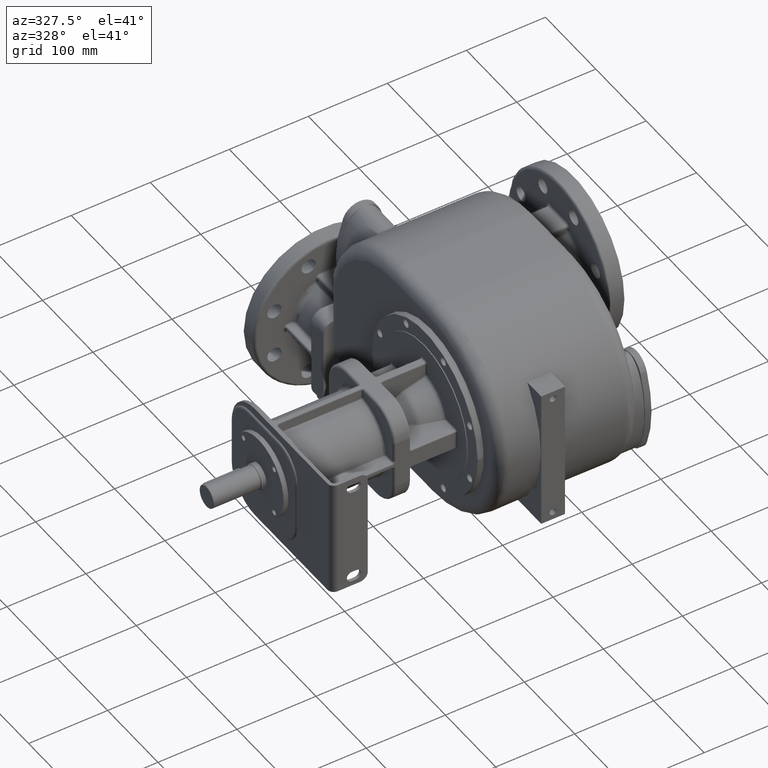
[diagram: clean part render]
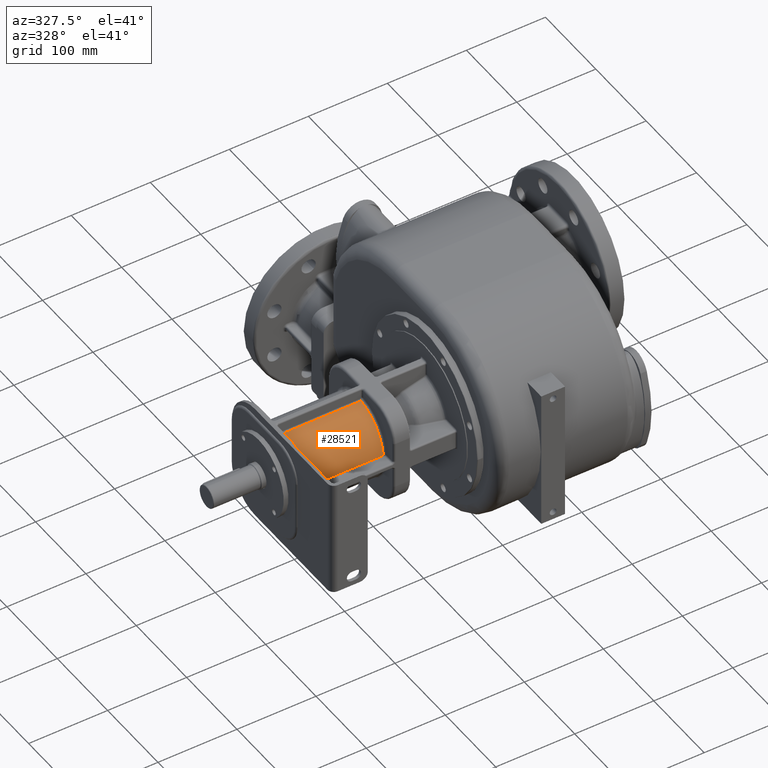
[diagram: same view with one face highlighted and labeled with its STEP entity id]
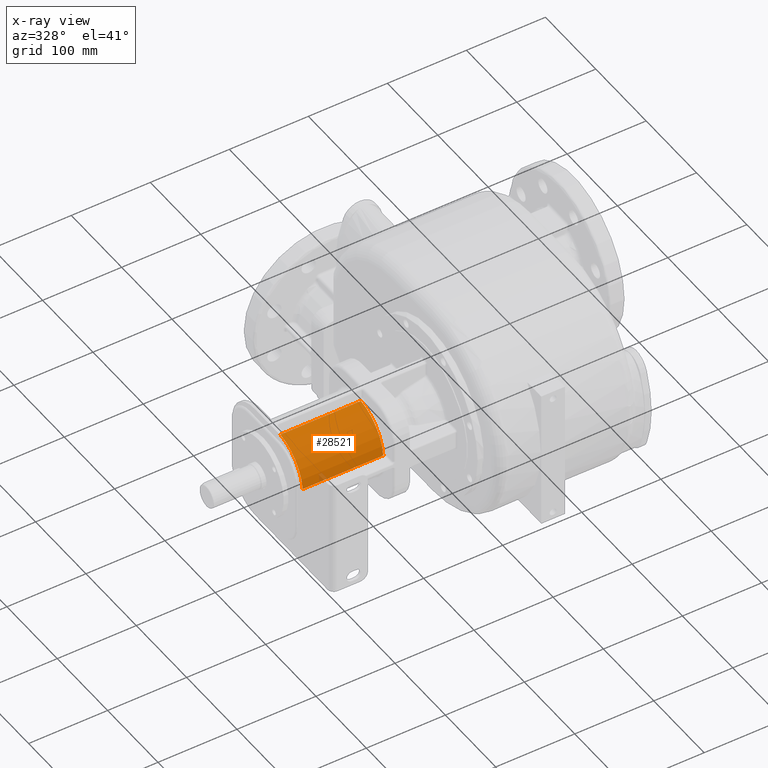
[diagram: x-ray of the same camera — body ghosted, the highlighted face saturated]
A machine part, auxiliary view. The second image highlights one B-rep face of the part: STEP entity #28521.
The next image is the same camera in x-ray: the body ghosted, the highlighted face saturated — about 1% of this face is hidden behind the body in this view.
In plain terms, the highlighted cylindrical surface (partial cylindrical patch) has radius 50 mm, axis along (-1, 0, 0).
Its self-contained STEP definition (entity closure, byte-faithful):
#8936=CARTESIAN_POINT('',(-2.645E2,8.228046485410E1,5.288461539069E0));
#8959=CARTESIAN_POINT('',(-2.645E2,1.32E2,0.E0));
#8960=DIRECTION('',(1.E0,0.E0,0.E0));
#8961=DIRECTION('',(0.E0,-1.057692307692E-1,9.943907028037E-1));
#8962=AXIS2_PLACEMENT_3D('',#8959,#8960,#8961);
#8979=DIRECTION('',(-1.E0,-3.501164499932E-12,3.724079868013E-13));
#8980=VECTOR('',#8979,1.02E2);
#8981=CARTESIAN_POINT('',(-1.625E2,8.228046485446E1,5.288461539031E0));
#8982=LINE('',#8981,#8980);
#8983=DIRECTION('',(1.E0,3.721293425912E-13,-3.501094838879E-12));
#8984=VECTOR('',#8983,1.02E2);
#8985=CARTESIAN_POINT('',(-2.645E2,1.267115384609E2,4.971953514590E1));
#8986=LINE('',#8985,#8984);
#9006=CARTESIAN_POINT('',(-1.625E2,1.32E2,0.E0));
#9007=DIRECTION('',(-1.E0,0.E0,0.E0));
#9008=DIRECTION('',(0.E0,-9.943907028037E-1,1.057692307692E-1));
#9009=AXIS2_PLACEMENT_3D('',#9006,#9007,#9008);
#9011=CARTESIAN_POINT('',(-1.625E2,1.267115384610E2,4.971953514554E1));
#15273=VERTEX_POINT('',#8936);
#15274=CARTESIAN_POINT('',(-1.625E2,8.228046485446E1,5.288461539031E0));
#15275=VERTEX_POINT('',#15274);
#15361=VERTEX_POINT('',#9011);
#15362=CARTESIAN_POINT('',(-2.645E2,1.267115384609E2,4.971953514590E1));
#15363=VERTEX_POINT('',#15362);
#28508=CARTESIAN_POINT('',(-1.376E2,1.32E2,0.E0));
#28509=DIRECTION('',(-1.E0,0.E0,0.E0));
#28510=DIRECTION('',(0.E0,-1.E0,0.E0));
#28511=AXIS2_PLACEMENT_3D('',#28508,#28509,#28510);
#28512=CYLINDRICAL_SURFACE('',#28511,5.E1);
#28514=ORIENTED_EDGE('',*,*,#28513,.T.);
#28515=ORIENTED_EDGE('',*,*,#28347,.F.);
#28516=ORIENTED_EDGE('',*,*,#28499,.T.);
#28518=ORIENTED_EDGE('',*,*,#28517,.F.);
#28519=EDGE_LOOP('',(#28514,#28515,#28516,#28518));
#28520=FACE_OUTER_BOUND('',#28519,.F.);
#28521=ADVANCED_FACE('',(#28520),#28512,.T.);
#8963=CIRCLE('',#8962,5.E1);
#9010=CIRCLE('',#9009,5.E1);
#28347=EDGE_CURVE('',#15363,#15273,#8963,.T.);
#28499=EDGE_CURVE('',#15363,#15361,#8986,.T.);
#28513=EDGE_CURVE('',#15275,#15273,#8982,.T.);
#28517=EDGE_CURVE('',#15275,#15361,#9010,.T.);